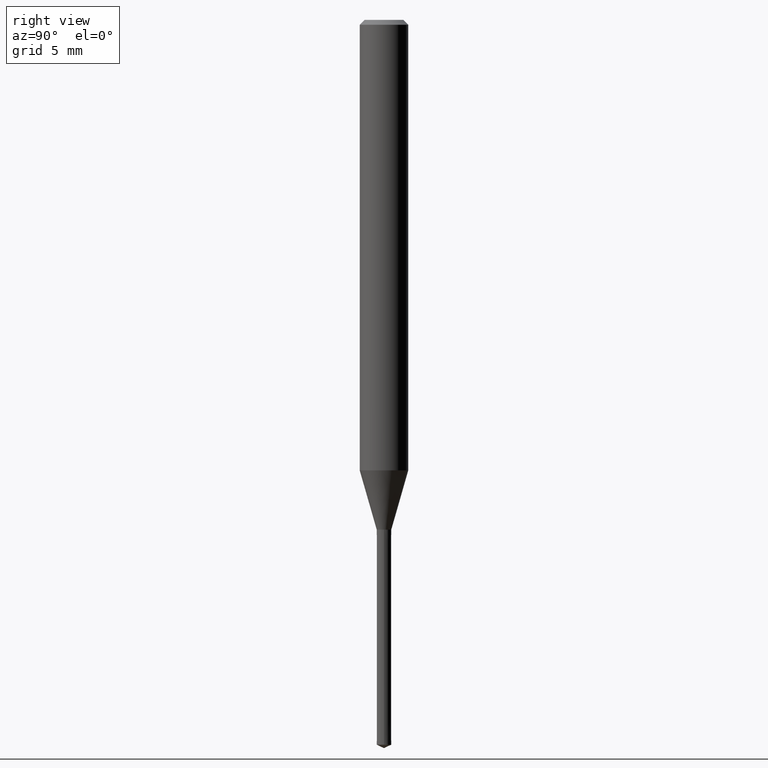
[diagram: clean part render]
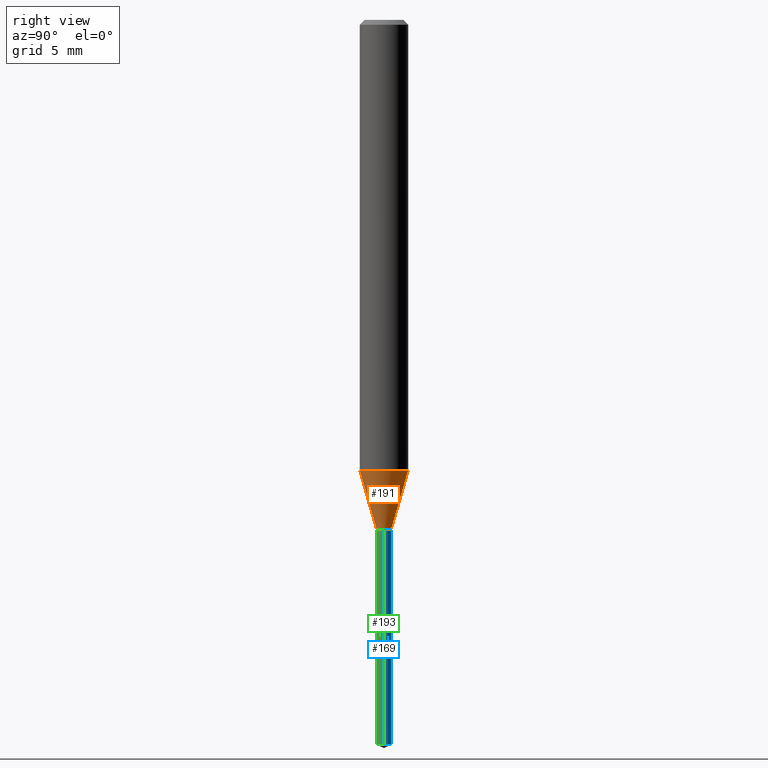
[diagram: same view with three faces highlighted in distinct colors, each labeled with its STEP entity id]
A machine part, right view with three faces highlighted in distinct colors.
Their STEP definitions:

[orange] entity #191 — the highlighted conical surface has half-angle 16.003 deg.
#95=EDGE_CURVE('',#103,#189,#231,.T.);
#103=VERTEX_POINT('',#240);
#161=VERTEX_POINT('',#307);
#177=VERTEX_POINT('',#325);
#187=EDGE_CURVE('',#177,#103,#335,.T.);
#189=VERTEX_POINT('',#337);
#191=ADVANCED_FACE('',(#339),#340,.T.);
#195=EDGE_CURVE('',#177,#161,#345,.T.);
#197=EDGE_CURVE('',#189,#161,#347,.T.);
#231=CIRCLE('',#376,0.45);
#240=CARTESIAN_POINT('',(0.0,0.45,-31.4991339745962));
#307=CARTESIAN_POINT('',(1.83690953073357E-016,-1.5,-27.838));
#325=CARTESIAN_POINT('',(0.0,1.5,-27.838));
#335=LINE('',#506,#507);
#337=CARTESIAN_POINT('',(5.5107285922007E-017,-0.45,-31.4991339745962));
#339=FACE_OUTER_BOUND('',#511,.T.);
#340=CONICAL_SURFACE('',#512,0.975,0.27929980700525);
#345=CIRCLE('',#518,1.5);
#347=LINE('',#521,#522);
#376=AXIS2_PLACEMENT_3D('',#544,#545,#546);
#506=CARTESIAN_POINT('',(-1.19399119497682E-016,0.975,-29.6685669872981));
#507=VECTOR('',#679,1.0);
#511=EDGE_LOOP('',(#681,#682,#683,#684));
#512=AXIS2_PLACEMENT_3D('',#685,#686,#687);
#518=AXIS2_PLACEMENT_3D('',#696,#697,#698);
#521=CARTESIAN_POINT('',(1.19399119497682E-016,-0.975,-29.6685669872981));
#522=VECTOR('',#699,1.0);
#544=CARTESIAN_POINT('',(0.0,0.0,-31.4991339745962));
#545=DIRECTION('',(0.0,0.0,-1.0));
#546=DIRECTION('',(0.0,1.0,0.0));
#679=DIRECTION('',(3.37602732897714E-017,-0.275682656589157,-0.961248704995718));
#681=ORIENTED_EDGE('',*,*,#187,.F.);
#682=ORIENTED_EDGE('',*,*,#195,.T.);
#683=ORIENTED_EDGE('',*,*,#197,.F.);
#684=ORIENTED_EDGE('',*,*,#95,.F.);
#685=CARTESIAN_POINT('',(0.0,0.0,-29.6685669872981));
#686=DIRECTION('',(-0.0,-0.0,1.0));
#687=DIRECTION('',(0.0,1.0,0.0));
#696=CARTESIAN_POINT('',(0.0,0.0,-27.838));
#697=DIRECTION('',(0.0,0.0,-1.0));
#698=DIRECTION('',(0.0,1.0,0.0));
#699=DIRECTION('',(3.37602732897714E-017,-0.275682656589157,0.961248704995718));

[blue] entity #169 — the highlighted conical surface has half-angle 0.004 deg.
#113=VERTEX_POINT('',#252);
#137=VERTEX_POINT('',#280);
#139=EDGE_CURVE('',#151,#173,#282,.T.);
#149=EDGE_CURVE('',#151,#113,#294,.T.);
#151=VERTEX_POINT('',#296);
#157=EDGE_CURVE('',#113,#137,#303,.T.);
#169=ADVANCED_FACE('',(#315),#316,.T.);
#173=VERTEX_POINT('',#320);
#199=EDGE_CURVE('',#137,#173,#349,.T.);
#252=CARTESIAN_POINT('',(-0.45,0.0,-44.79016155));
#280=CARTESIAN_POINT('',(0.45,5.5107285922007E-017,-44.79016155));
#282=CIRCLE('',#435,0.451);
#294=LINE('',#452,#453);
#296=CARTESIAN_POINT('',(-0.451,0.0,-31.5));
#303=CIRCLE('',#464,0.45);
#315=FACE_OUTER_BOUND('',#481,.T.);
#316=CONICAL_SURFACE('',#482,0.4505,7.52436299852803E-005);
#320=CARTESIAN_POINT('',(0.451,5.52297465573892E-017,-31.5));
#349=LINE('',#525,#526);
#435=AXIS2_PLACEMENT_3D('',#619,#620,#621);
#452=CARTESIAN_POINT('',(-0.4505,-5.51685162396981E-017,-38.145080775));
#453=VECTOR('',#638,1.0);
#464=AXIS2_PLACEMENT_3D('',#649,#650,#651);
#481=EDGE_LOOP('',(#658,#659,#660,#661));
#482=AXIS2_PLACEMENT_3D('',#662,#663,#664);
#525=CARTESIAN_POINT('',(0.4505,5.51685162396981E-017,-38.145080775));
#526=VECTOR('',#700,1.0);
#619=CARTESIAN_POINT('',(0.0,0.0,-31.5));
#620=DIRECTION('',(0.0,0.0,-1.0));
#621=DIRECTION('',(-1.0,0.0,0.0));
#638=DIRECTION('',(7.52436299142804E-005,9.21438272776873E-021,-0.999999997169198));
#649=CARTESIAN_POINT('',(0.0,0.0,-44.79016155));
#650=DIRECTION('',(0.0,0.0,-1.0));
#651=DIRECTION('',(-1.0,0.0,0.0));
#658=ORIENTED_EDGE('',*,*,#149,.F.);
#659=ORIENTED_EDGE('',*,*,#139,.T.);
#660=ORIENTED_EDGE('',*,*,#199,.F.);
#661=ORIENTED_EDGE('',*,*,#157,.F.);
#662=CARTESIAN_POINT('',(0.0,0.0,-38.145080775));
#663=DIRECTION('',(-0.0,-0.0,1.0));
#664=DIRECTION('',(-1.0,0.0,0.0));
#700=DIRECTION('',(7.52436299142804E-005,9.21438272776873E-021,0.999999997169198));

[green] entity #193 — the highlighted conical surface has half-angle 0.004 deg.
#113=VERTEX_POINT('',#252);
#115=EDGE_CURVE('',#137,#113,#254,.T.);
#137=VERTEX_POINT('',#280);
#149=EDGE_CURVE('',#151,#113,#294,.T.);
#151=VERTEX_POINT('',#296);
#173=VERTEX_POINT('',#320);
#179=EDGE_CURVE('',#173,#151,#327,.T.);
#193=ADVANCED_FACE('',(#342),#343,.T.);
#199=EDGE_CURVE('',#137,#173,#349,.T.);
#252=CARTESIAN_POINT('',(-0.45,0.0,-44.79016155));
#254=CIRCLE('',#402,0.45);
#280=CARTESIAN_POINT('',(0.45,5.5107285922007E-017,-44.79016155));
#294=LINE('',#452,#453);
#296=CARTESIAN_POINT('',(-0.451,0.0,-31.5));
#320=CARTESIAN_POINT('',(0.451,5.52297465573892E-017,-31.5));
#327=CIRCLE('',#496,0.451);
#342=FACE_OUTER_BOUND('',#514,.T.);
#343=CONICAL_SURFACE('',#515,0.4505,7.52436299852803E-005);
#349=LINE('',#525,#526);
#402=AXIS2_PLACEMENT_3D('',#572,#573,#574);
#452=CARTESIAN_POINT('',(-0.4505,-5.51685162396981E-017,-38.145080775));
#453=VECTOR('',#638,1.0);
#496=AXIS2_PLACEMENT_3D('',#673,#674,#675);
#514=EDGE_LOOP('',(#689,#690,#691,#692));
#515=AXIS2_PLACEMENT_3D('',#693,#694,#695);
#525=CARTESIAN_POINT('',(0.4505,5.51685162396981E-017,-38.145080775));
#526=VECTOR('',#700,1.0);
#572=CARTESIAN_POINT('',(0.0,0.0,-44.79016155));
#573=DIRECTION('',(0.0,0.0,-1.0));
#574=DIRECTION('',(-1.0,0.0,0.0));
#638=DIRECTION('',(7.52436299142804E-005,9.21438272776873E-021,-0.999999997169198));
#673=CARTESIAN_POINT('',(0.0,0.0,-31.5));
#674=DIRECTION('',(0.0,0.0,-1.0));
#675=DIRECTION('',(-1.0,0.0,0.0));
#689=ORIENTED_EDGE('',*,*,#149,.T.);
#690=ORIENTED_EDGE('',*,*,#115,.F.);
#691=ORIENTED_EDGE('',*,*,#199,.T.);
#692=ORIENTED_EDGE('',*,*,#179,.T.);
#693=CARTESIAN_POINT('',(0.0,0.0,-38.145080775));
#694=DIRECTION('',(-0.0,-0.0,1.0));
#695=DIRECTION('',(-1.0,0.0,0.0));
#700=DIRECTION('',(7.52436299142804E-005,9.21438272776873E-021,0.999999997169198));